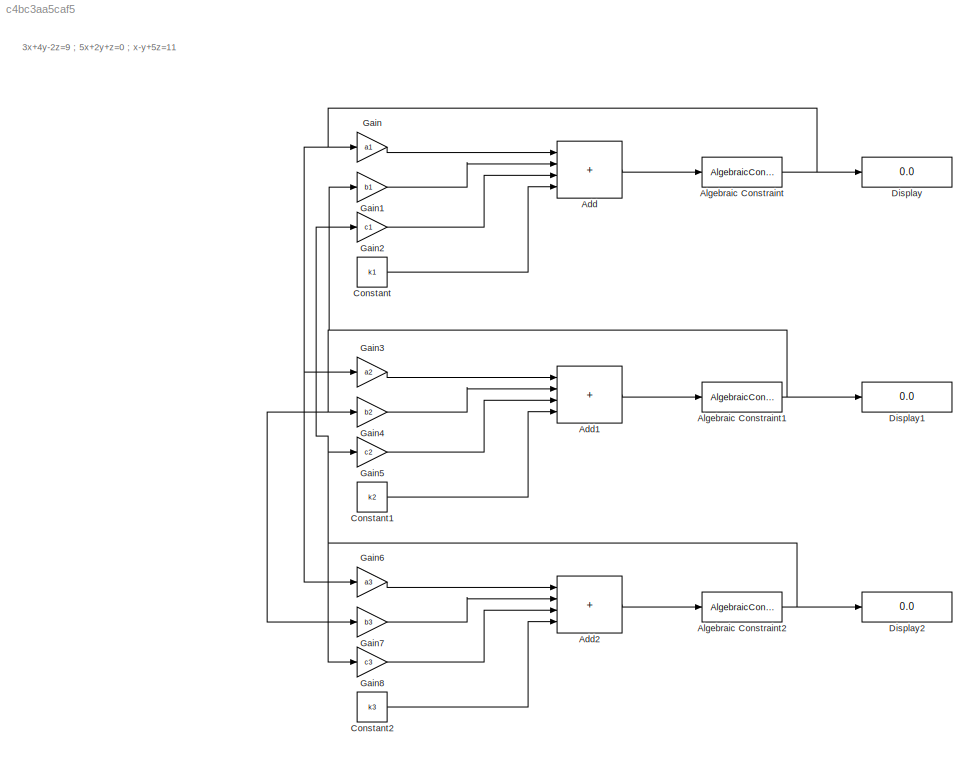
MODEL slx_c4bc3aa5caf5
KIND model
CONFIG AbsTol = auto
CONFIG EnableMultiTasking = off
CONFIG FixedStep = auto
CONFIG MaxStep = auto
CONFIG MinStep = auto
CONFIG RelTol = 1e-3
CONFIG SampleTimeConstraint = Unconstrained
CONFIG SolverName = VariableStepAuto
CONFIG StartTime = 0.0
CONFIG StopTime = 10.0
BLOCK [Sum] Add
  IconShape = rectangular
  Inputs = ++++
BLOCK [Sum] Add1
  IconShape = rectangular
  Inputs = ++++
BLOCK [Sum] Add2
  IconShape = rectangular
  Inputs = ++++
BLOCK [AlgebraicConstraint] Algebraic Constraint
BLOCK [AlgebraicConstraint] Algebraic Constraint1
BLOCK [AlgebraicConstraint] Algebraic Constraint2
BLOCK [Constant] Constant
  Value = k1
BLOCK [Constant] Constant1
  Value = k2
BLOCK [Constant] Constant2
  Value = k3
BLOCK [Display] Display
  Decimation = 1
BLOCK [Display] Display1
  Decimation = 1
BLOCK [Display] Display2
  Decimation = 1
BLOCK [Gain] Gain
  Gain = a1
BLOCK [Gain] Gain1
  Gain = b1
BLOCK [Gain] Gain2
  Gain = c1
BLOCK [Gain] Gain3
  Gain = a2
BLOCK [Gain] Gain4
  Gain = b2
BLOCK [Gain] Gain5
  Gain = c2
BLOCK [Gain] Gain6
  Gain = a3
BLOCK [Gain] Gain7
  Gain = b3
BLOCK [Gain] Gain8
  Gain = c3
ANNOTATION (root): 3x+4y-2z=9 ; 5x+2y+z=0 ; x-y+5z=11
LINE Add1:1 -> Algebraic Constraint1:1
LINE Add2:1 -> Algebraic Constraint2:1
LINE Add:1 -> Algebraic Constraint:1
NET Algebraic Constraint1:1 -> Display1:1, Gain1:1, Gain4:1, Gain7:1
NET Algebraic Constraint2:1 -> Display2:1, Gain2:1, Gain5:1, Gain8:1
NET Algebraic Constraint:1 -> Display:1, Gain3:1, Gain6:1, Gain:1
LINE Constant1:1 -> Add1:4
LINE Constant2:1 -> Add2:4
LINE Constant:1 -> Add:4
LINE Gain1:1 -> Add:2
LINE Gain2:1 -> Add:3
LINE Gain3:1 -> Add1:1
LINE Gain4:1 -> Add1:2
LINE Gain5:1 -> Add1:3
LINE Gain6:1 -> Add2:1
LINE Gain7:1 -> Add2:2
LINE Gain8:1 -> Add2:3
LINE Gain:1 -> Add:1
note: NET lines group one-source signal fan-out (src -> all destinations, sorted); 1:1 wires keep LINE
